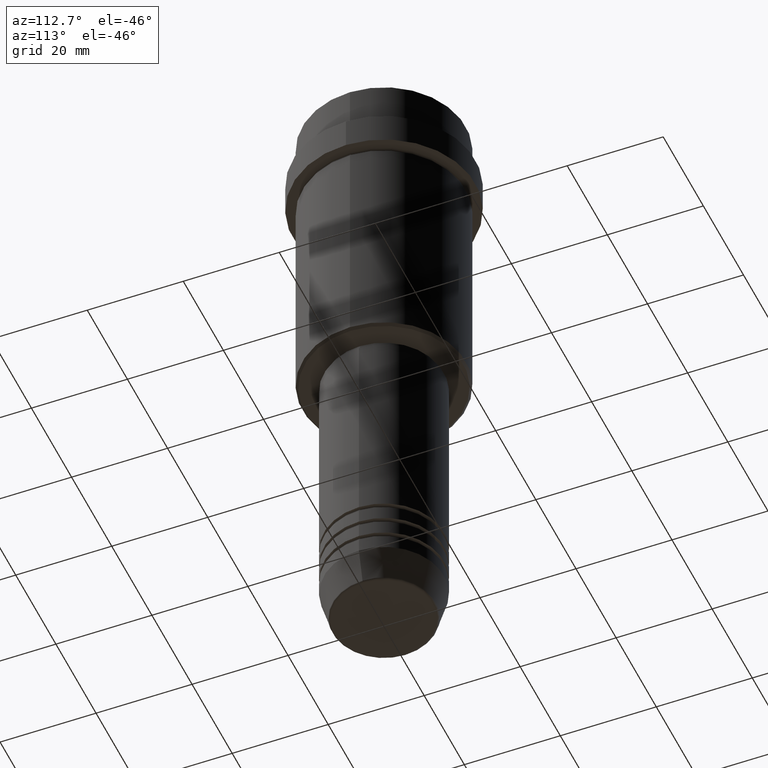
[diagram: clean part render]
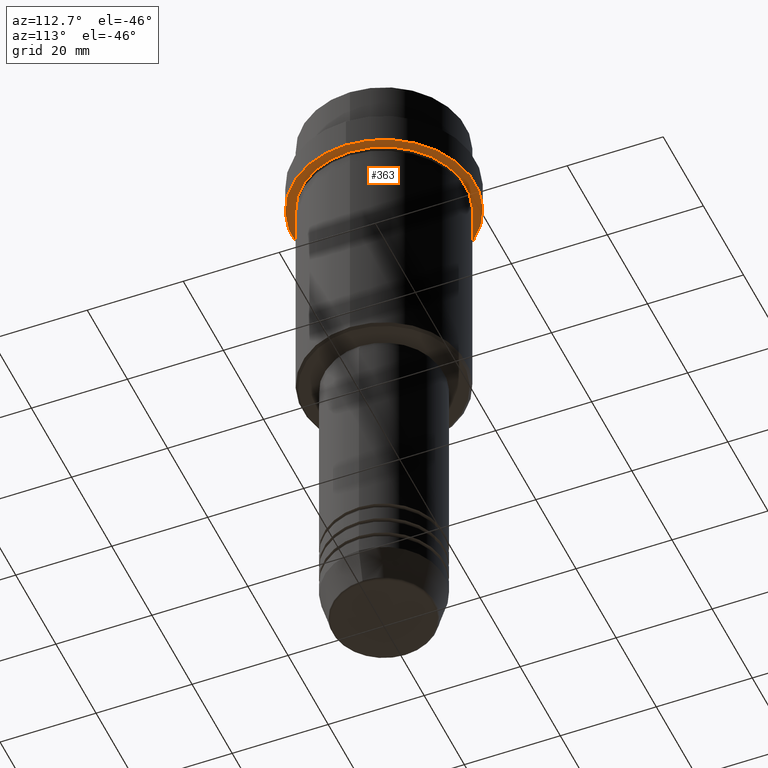
[diagram: same view with one face highlighted and labeled with its STEP entity id]
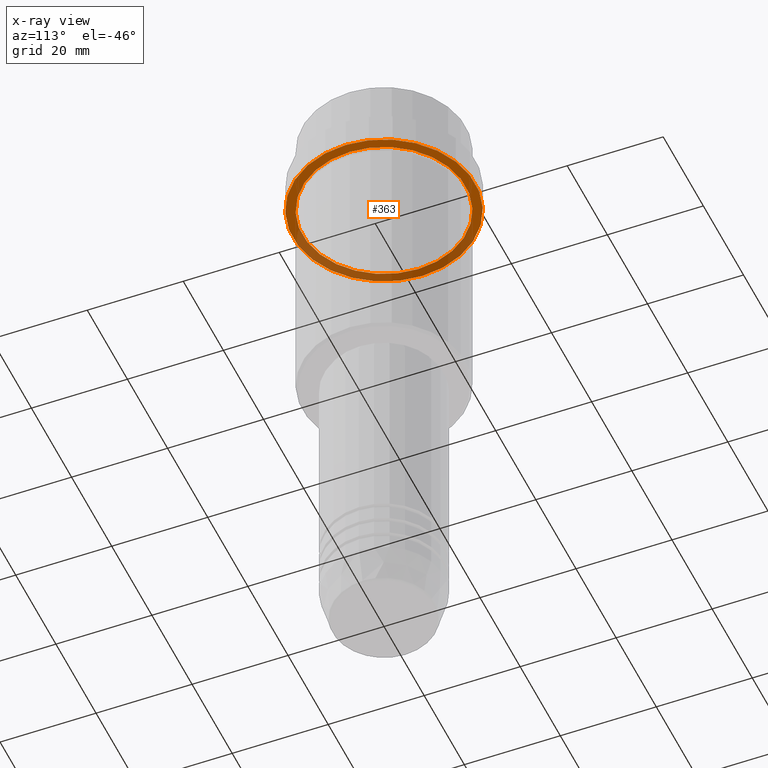
[diagram: x-ray of the same camera — body ghosted, the highlighted face saturated]
A machine part, auxiliary view. The second image highlights one B-rep face of the part: STEP entity #363.
The next image is the same camera in x-ray: the body ghosted, the highlighted face saturated — about 38% of this face is hidden behind the body in this view.
In plain terms, the highlighted planar face has unit normal (0, 0, -1).
Its self-contained STEP definition (entity closure, byte-faithful):
#14 = CARTESIAN_POINT ( 'NONE',  ( 0.000000000000000000, 0.000000000000000000, -17.00000000000000000 ) ) ;
#28 = ORIENTED_EDGE ( 'NONE', *, *, #192, .T. ) ;
#46 = VERTEX_POINT ( 'NONE', #102 ) ;
#47 = CIRCLE ( 'NONE', #692, 18.99999999999998579 ) ;
#85 = CIRCLE ( 'NONE', #364, 16.99999999999997868 ) ;
#102 = CARTESIAN_POINT ( 'NONE',  ( 16.99999999999997868, 2.081899558550498307E-15, -17.00000000000000000 ) ) ;
#124 = DIRECTION ( 'NONE',  ( 1.000000000000000000, 0.000000000000000000, 0.000000000000000000 ) ) ;
#125 = CARTESIAN_POINT ( 'NONE',  ( 18.99999999999998579, 0.000000000000000000, -17.00000000000000000 ) ) ;
#129 = CARTESIAN_POINT ( 'NONE',  ( 0.000000000000000000, 0.000000000000000000, -17.00000000000000000 ) ) ;
#142 = DIRECTION ( 'NONE',  ( -1.000000000000000000, 0.000000000000000000, 0.000000000000000000 ) ) ;
#162 = FACE_OUTER_BOUND ( 'NONE', #863, .T. ) ;
#176 = CARTESIAN_POINT ( 'NONE',  ( 0.000000000000000000, 0.000000000000000000, -17.00000000000000000 ) ) ;
#185 = FACE_BOUND ( 'NONE', #873, .T. ) ;
#192 = EDGE_CURVE ( 'NONE', #46, #1213, #85, .T. ) ;
#256 = AXIS2_PLACEMENT_3D ( 'NONE', #493, #604, #842 ) ;
#276 = ORIENTED_EDGE ( 'NONE', *, *, #940, .F. ) ;
#288 = DIRECTION ( 'NONE',  ( -0.000000000000000000, -0.000000000000000000, 1.000000000000000000 ) ) ;
#363 = ADVANCED_FACE ( 'NONE', ( #185, #162 ), #1271, .T. ) ;
#364 = AXIS2_PLACEMENT_3D ( 'NONE', #129, #568, #142 ) ;
#390 = CIRCLE ( 'NONE', #1324, 18.99999999999998579 ) ;
#396 = ORIENTED_EDGE ( 'NONE', *, *, #787, .F. ) ;
#426 = DIRECTION ( 'NONE',  ( -0.000000000000000000, -0.000000000000000000, 1.000000000000000000 ) ) ;
#484 = DIRECTION ( 'NONE',  ( -1.000000000000000000, 0.000000000000000000, 0.000000000000000000 ) ) ;
#493 = CARTESIAN_POINT ( 'NONE',  ( 0.000000000000000000, 18.99999999999998579, -17.00000000000000000 ) ) ;
#568 = DIRECTION ( 'NONE',  ( -0.000000000000000000, -0.000000000000000000, 1.000000000000000000 ) ) ;
#604 = DIRECTION ( 'NONE',  ( 0.000000000000000000, 0.000000000000000000, -1.000000000000000000 ) ) ;
#692 = AXIS2_PLACEMENT_3D ( 'NONE', #14, #897, #124 ) ;
#709 = VERTEX_POINT ( 'NONE', #125 ) ;
#758 = CARTESIAN_POINT ( 'NONE',  ( -16.99999999999997868, 0.000000000000000000, -17.00000000000000000 ) ) ;
#787 = EDGE_CURVE ( 'NONE', #709, #1253, #47, .T. ) ;
#842 = DIRECTION ( 'NONE',  ( -1.000000000000000000, 0.000000000000000000, -0.000000000000000000 ) ) ;
#863 = EDGE_LOOP ( 'NONE', ( #396, #276 ) ) ;
#873 = EDGE_LOOP ( 'NONE', ( #1026, #28 ) ) ;
#897 = DIRECTION ( 'NONE',  ( -0.000000000000000000, -0.000000000000000000, 1.000000000000000000 ) ) ;
#934 = CARTESIAN_POINT ( 'NONE',  ( -18.99999999999998579, 2.326828918379969393E-15, -17.00000000000000000 ) ) ;
#940 = EDGE_CURVE ( 'NONE', #1253, #709, #390, .T. ) ;
#1026 = ORIENTED_EDGE ( 'NONE', *, *, #1064, .T. ) ;
#1050 = CIRCLE ( 'NONE', #1187, 16.99999999999997868 ) ;
#1064 = EDGE_CURVE ( 'NONE', #1213, #46, #1050, .T. ) ;
#1187 = AXIS2_PLACEMENT_3D ( 'NONE', #176, #288, #484 ) ;
#1211 = DIRECTION ( 'NONE',  ( 1.000000000000000000, 0.000000000000000000, 0.000000000000000000 ) ) ;
#1213 = VERTEX_POINT ( 'NONE', #758 ) ;
#1227 = CARTESIAN_POINT ( 'NONE',  ( 0.000000000000000000, 0.000000000000000000, -17.00000000000000000 ) ) ;
#1253 = VERTEX_POINT ( 'NONE', #934 ) ;
#1271 = PLANE ( 'NONE',  #256 ) ;
#1324 = AXIS2_PLACEMENT_3D ( 'NONE', #1227, #426, #1211 ) ;